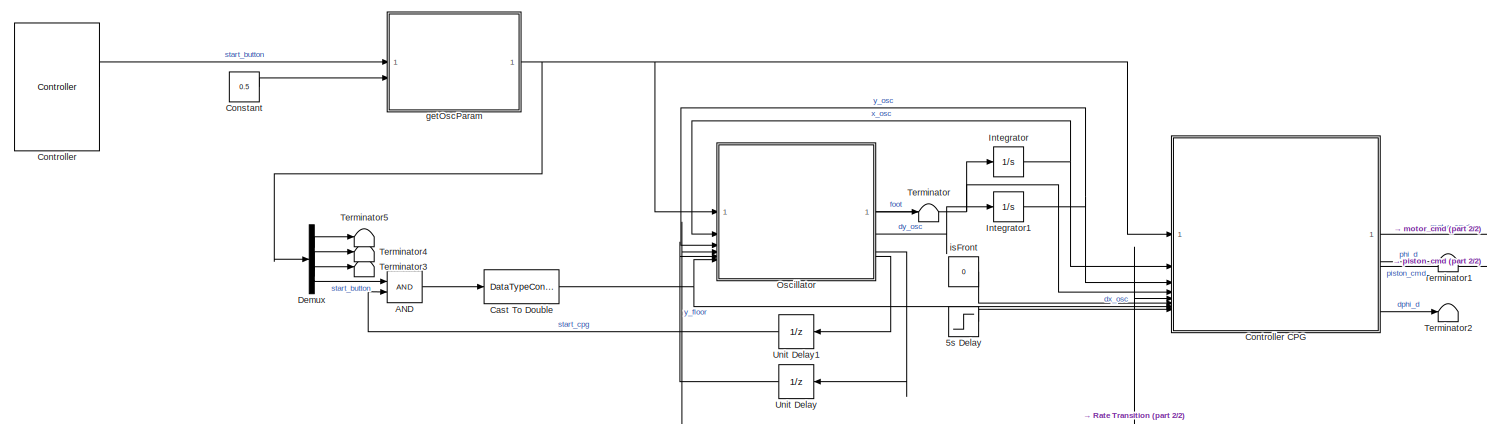
[diagram: root canvas - part 1/2, left side, full height]
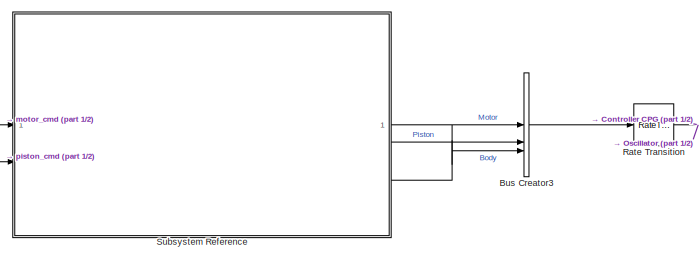
[diagram: root canvas - part 2/2, middle right region]
MODEL slx_0c3da3be966b
KIND model
CONFIG AbsTol = auto
CONFIG EnableMultiTasking = off
CONFIG FixedStep = auto
CONFIG InitFcn = busObjects;
CONFIG MaxStep = auto
CONFIG MinStep = auto
CONFIG RelTol = 1e-3
CONFIG SampleTimeConstraint = Unconstrained
CONFIG SolverName = FixedStepAuto
CONFIG StartTime = 0.0
CONFIG StopTime = inf
BLOCK [Step] 5s Delay
  SampleTime = 0
  Time = 5
BLOCK [Logic] AND
  AllPortsSameDT = off
  IconShape = distinctive
  OutDataTypeStr = boolean
BLOCK [BusCreator] Bus Creator3
  DisplayOption = bar
  InheritFromInputs = off
  Inputs = 3
  NonVirtualBus = on
  OutDataTypeStr = Bus: State
BLOCK [DataTypeConversion] Cast To Double
  OutDataTypeStr = double
  RndMeth = Floor
  SaturateOnIntegerOverflow = off
BLOCK [Constant] Constant
  Value = 0.5
BLOCK [Reference] Controller  REF=aru_toolbox/Controller
  SourceBlock = aru_toolbox/Controller
  SourceProductName = ARU Toolbox
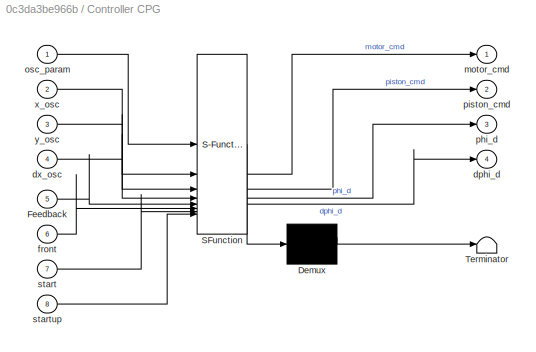
BLOCK [SubSystem] Controller CPG
  ErrorFcn = Stateflow.Translate.translate
  PermitHierarchicalResolution = ExplicitOnly
  SFBlockType = MATLAB Function
  TreatAsAtomicUnit = on
BLOCK [Demux] Controller CPG/ Demux 
  Outputs = 1
BLOCK [S-Function] Controller CPG/ SFunction 
  EnableBusSupport = on
  FunctionName = sf_sfun
  PortCounts = [8 5]
  SFcnIsStateOwnerBlock = off
  SFunctionDeploymentMode = off
  Tag = Stateflow S-Function 3
BLOCK [Terminator] Controller CPG/ Terminator 
BLOCK [Inport] Controller CPG/Feedback
  Port = 5
BLOCK [Outport] Controller CPG/dphi_d
  Port = 4
BLOCK [Inport] Controller CPG/dx_osc
  Port = 4
BLOCK [Inport] Controller CPG/front
  Port = 6
BLOCK [Outport] Controller CPG/motor_cmd
BLOCK [Inport] Controller CPG/osc_param
BLOCK [Outport] Controller CPG/phi_d
  Port = 3
BLOCK [Outport] Controller CPG/piston_cmd
  Port = 2
BLOCK [Inport] Controller CPG/start
  Port = 7
BLOCK [Inport] Controller CPG/startup
  Port = 8
BLOCK [Inport] Controller CPG/x_osc
  Port = 2
BLOCK [Inport] Controller CPG/y_osc
  Port = 3
BLOCK [Demux] Demux
BLOCK [Integrator] Integrator
BLOCK [Integrator] Integrator1
  InitialCondition = 1
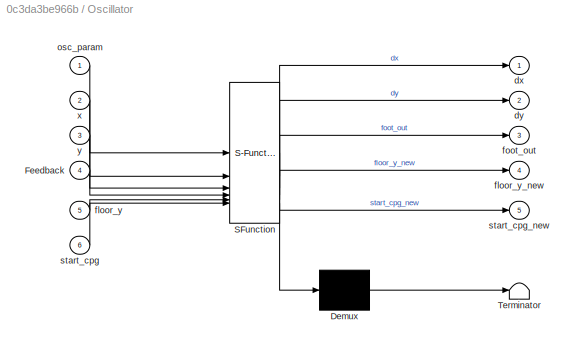
BLOCK [SubSystem] Oscillator
  ErrorFcn = Stateflow.Translate.translate
  PermitHierarchicalResolution = ExplicitOnly
  SFBlockType = MATLAB Function
  TreatAsAtomicUnit = on
BLOCK [Demux] Oscillator/ Demux 
  Outputs = 1
BLOCK [S-Function] Oscillator/ SFunction 
  EnableBusSupport = on
  FunctionName = sf_sfun
  PortCounts = [6 6]
  SFcnIsStateOwnerBlock = off
  SFunctionDeploymentMode = off
  Tag = Stateflow S-Function 4
BLOCK [Terminator] Oscillator/ Terminator 
BLOCK [Inport] Oscillator/Feedback
  Port = 4
BLOCK [Outport] Oscillator/dx
BLOCK [Outport] Oscillator/dy
  Port = 2
BLOCK [Inport] Oscillator/floor_y
  Port = 5
BLOCK [Outport] Oscillator/floor_y_new
  Port = 4
BLOCK [Outport] Oscillator/foot_out
  Port = 3
BLOCK [Inport] Oscillator/osc_param
BLOCK [Inport] Oscillator/start_cpg
  Port = 6
BLOCK [Outport] Oscillator/start_cpg_new
  Port = 5
BLOCK [Inport] Oscillator/x
  Port = 2
BLOCK [Inport] Oscillator/y
  Port = 3
BLOCK [RateTransition] Rate Transition
BLOCK [SubSystem] Subsystem Reference
  ReferencedSubsystem = SLembaInterface
BLOCK [Terminator] Terminator
BLOCK [Terminator] Terminator1
BLOCK [Terminator] Terminator2
BLOCK [Terminator] Terminator3
BLOCK [Terminator] Terminator4
BLOCK [Terminator] Terminator5
BLOCK [UnitDelay] Unit Delay
  HasFrameUpgradeWarning = on
  NameLocation = top
  SampleTime = -1
BLOCK [UnitDelay] Unit Delay1
  HasFrameUpgradeWarning = on
  NameLocation = top
  SampleTime = -1
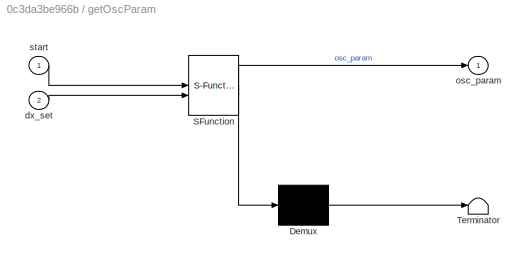
BLOCK [SubSystem] getOscParam
  ErrorFcn = Stateflow.Translate.translate
  PermitHierarchicalResolution = ExplicitOnly
  SFBlockType = MATLAB Function
  TreatAsAtomicUnit = on
BLOCK [Demux] getOscParam/ Demux 
  Outputs = 1
BLOCK [S-Function] getOscParam/ SFunction 
  EnableBusSupport = on
  FunctionName = sf_sfun
  PortCounts = [2 2]
  SFcnIsStateOwnerBlock = off
  SFunctionDeploymentMode = off
  Tag = Stateflow S-Function 2
BLOCK [Terminator] getOscParam/ Terminator 
BLOCK [Inport] getOscParam/dx_set
  Port = 2
BLOCK [Outport] getOscParam/osc_param
BLOCK [Inport] getOscParam/start
BLOCK [Constant] isFront
  Value = 0
LINE 5s Delay:1 -> Controller CPG:8
LINE AND:1 -> Cast To Double:1
LINE Bus Creator3:1 -> Rate Transition:1
NET Cast To Double:1 -> Controller CPG:7, Oscillator:6
LINE Constant:1 -> getOscParam:2
LINE Controller CPG:1 -> Subsystem Reference:1
LINE Controller CPG:2 -> Subsystem Reference:2
LINE Controller CPG:3 -> Terminator1:1
LINE Controller CPG:4 -> Terminator2:1
LINE Controller:1 -> getOscParam:1
LINE Demux:1 -> Terminator5:1
LINE Demux:2 -> Terminator4:1
LINE Demux:3 -> Terminator3:1
LINE Demux:4 -> AND:1
NET Integrator1:1 -> Controller CPG:3, Oscillator:3
NET Integrator:1 -> Controller CPG:2, Oscillator:2
NET Oscillator:1 -> Controller CPG:4, Integrator:1
LINE Oscillator:2 -> Integrator1:1
LINE Oscillator:3 -> Terminator:1
LINE Oscillator:4 -> Unit Delay:1
LINE Oscillator:5 -> Unit Delay1:1
NET Rate Transition:1 -> Controller CPG:5, Oscillator:4
LINE Subsystem Reference:1 -> Bus Creator3:1
LINE Subsystem Reference:2 -> Bus Creator3:2
LINE Subsystem Reference:3 -> Bus Creator3:3
LINE Unit Delay1:1 -> AND:2
LINE Unit Delay:1 -> Oscillator:5
NET getOscParam:1 -> Controller CPG:1, Demux:1, Oscillator:1
LINE isFront:1 -> Controller CPG:6
note: NET lines group one-source signal fan-out (src -> all destinations, sorted); 1:1 wires keep LINE
CHART getOscParam states=1 transitions=1
  STATE_LABEL 'eML_blk_kernel()'
  STATE_LABEL 'SCRIPT:\nfunction osc_param = osc_paramCalc(start,dx_set) %tst_sol, kx_sol, tsw_sol,\n\n% persistent osc_paramVal\n% \n% if isempty(osc_paramVal)\n%     out = load("PSO_runs/sol.mat");\n%     out = out.out;\n%     tst = out.simParams.tst;\n%     kx = out.simParams.kx;\n% \n%     tsw = out.out.BestSol.Position(4);\n% \n%     osc_paramVal = [tst,tsw,kx];\n% end\n\npersistent state % 0 is wait, 1 is green button pre...<+428ch>'
CHART Controller CPG states=1 transitions=1
  STATE_LABEL 'eML_blk_kernel()'
  STATE_LABEL 'SCRIPT:\nfunction [motor_cmd,piston_cmd,phi_d,dphi_d] = Controller(osc_param, x_osc,y_osc,dx_osc,Feedback,front, start, startup)\n\npersistent state_control % 1 = wait, 2 = startup, 3 = stop\n\nif isempty(state_control)\n    state_control = 1;\nend\n\nmotor_state = Feedback.Motor; piston_state = Feedback.Piston;\n\nkx = osc_param(3);\n\nl = piston_state.p;\ndl = piston_state.v;\nth = motor_state.q;\n\nif (front)\n ...<+1339ch>'
CHART Oscillator states=1 transitions=1
  STATE_LABEL 'eML_blk_kernel()'
  STATE_LABEL 'SCRIPT:\n% function [dx,dy,floor_y_new,foot_out,start_cpg_new] = CPG(x,y,Body_state,Piston_state, Motor_state, osc_param,floor_y,start,start_cpg)%,dy_lift, fit)%dq_osc = CPG(input_osc)%\n% x = input_osc.x_osc; y = input_osc.y_osc; osc_param = input_osc.osc_param;\n% Body_state = input_osc.Body_state; Piston_state = input_osc.Piston_state; Motor_state = input_osc.Motor_state;\nfunction [dx,dy,foot_out,...<+2626ch>'
CHART  states=0 transitions=0
CHART  states=0 transitions=0
CHART  states=0 transitions=0
